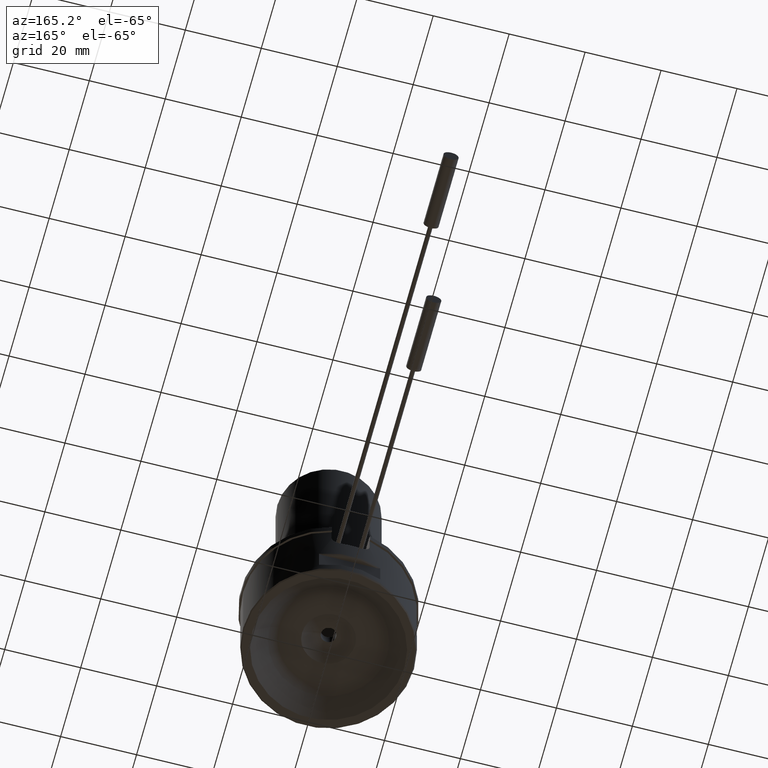
[diagram: clean part render]
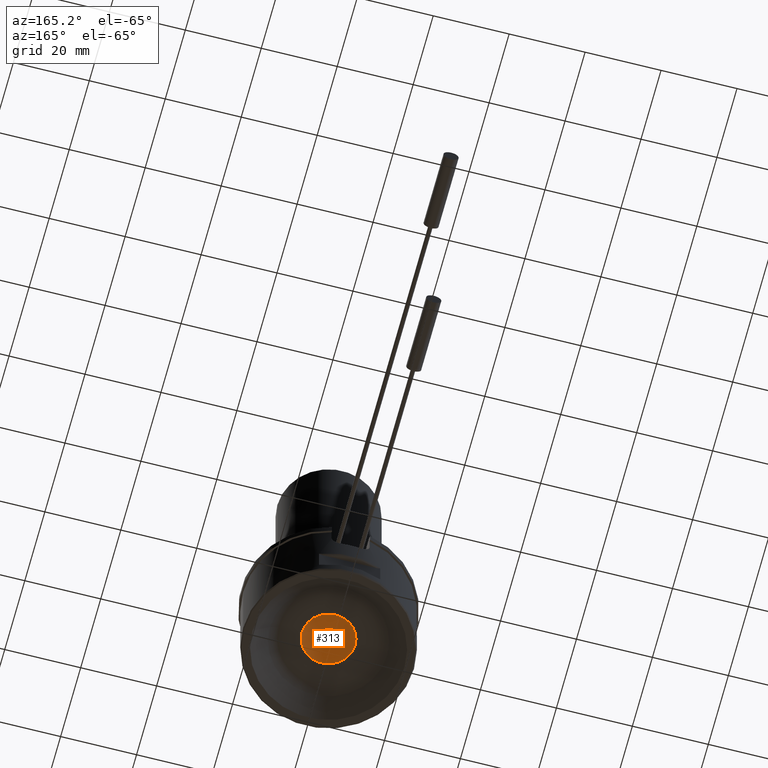
[diagram: same view with one face highlighted and labeled with its STEP entity id]
A machine part, auxiliary view. The second image highlights one B-rep face of the part: STEP entity #313.
In plain terms, the highlighted spherical surface has radius 11 mm.
Its self-contained STEP definition (entity closure, byte-faithful):
#23=SPHERICAL_SURFACE('',#1192,11.);
#313=ADVANCED_FACE('',(#416,#417),#23,.F.);
#416=FACE_BOUND('',#495,.T.);
#417=FACE_BOUND('',#496,.T.);
#495=EDGE_LOOP('',(#680));
#496=EDGE_LOOP('',(#681));
#680=ORIENTED_EDGE('',*,*,#1004,.T.);
#681=ORIENTED_EDGE('',*,*,#1003,.F.);
#885=VERTEX_POINT('',#1944);
#886=VERTEX_POINT('',#1947);
#1003=EDGE_CURVE('',#885,#885,#1087,.T.);
#1004=EDGE_CURVE('',#886,#886,#1088,.T.);
#1087=CIRCLE('',#1189,1.99999999999999);
#1088=CIRCLE('',#1191,6.98212002188452);
#1189=AXIS2_PLACEMENT_3D('',#1943,#1455,#1456);
#1191=AXIS2_PLACEMENT_3D('',#1946,#1459,#1460);
#1192=AXIS2_PLACEMENT_3D('',#1948,#1461,#1462);
#1455=DIRECTION('',(0.,0.,-1.));
#1456=DIRECTION('',(1.,0.,0.));
#1459=DIRECTION('',(0.,0.,-1.));
#1460=DIRECTION('',(1.,0.,0.));
#1461=DIRECTION('',(0.,-6.12323399573677E-17,1.));
#1462=DIRECTION('',(0.,-1.,0.));
#1943=CARTESIAN_POINT('',(0.,0.,8.31665382639197));
#1944=CARTESIAN_POINT('',(1.99999999999999,0.,8.31665382639197));
#1946=CARTESIAN_POINT('',(0.,0.,5.99999999999996));
#1947=CARTESIAN_POINT('',(6.98212002188452,0.,5.99999999999996));
#1948=CARTESIAN_POINT('',(0.,0.,-2.5));